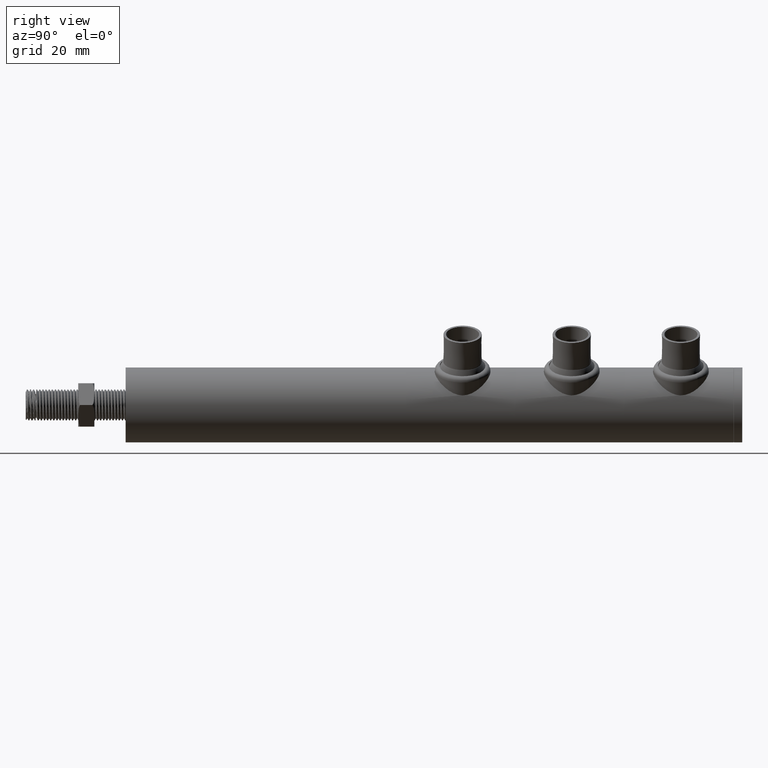
[diagram: clean part render]
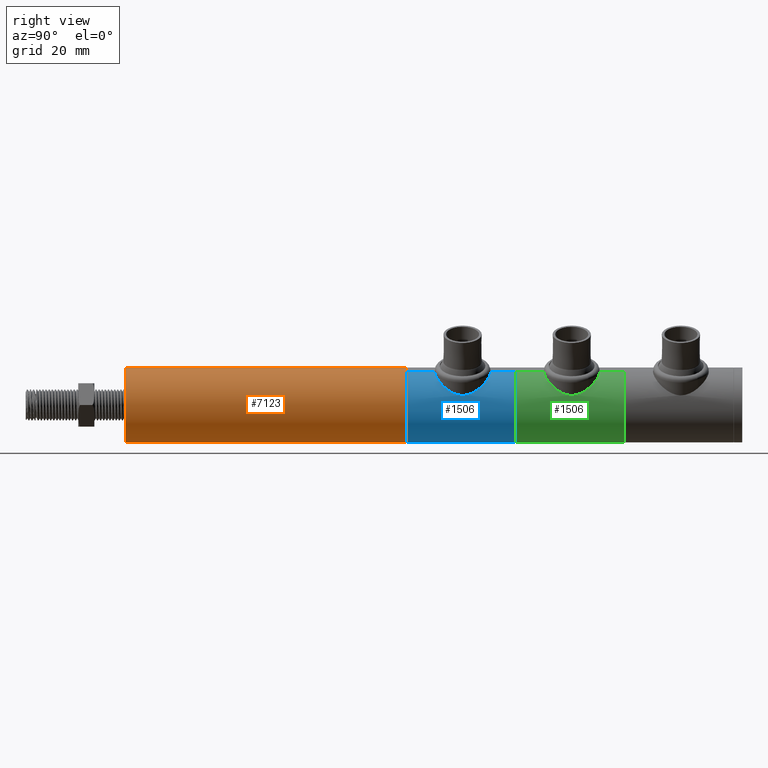
[diagram: same view with three faces highlighted in distinct colors, each labeled with its STEP entity id]
A machine part, right view with three faces highlighted in distinct colors.
Their STEP definitions:

[orange] entity #7123 — the highlighted cylindrical surface (partial cylindrical patch) has radius 12 mm, axis along (-0, -1, -0).
#289 = AXIS2_PLACEMENT_3D ( 'NONE', #17528, #1283, #13801 ) ;
#1283 = DIRECTION ( 'NONE',  ( 0.000000000000000000, 1.000000000000000000, 0.000000000000000000 ) ) ;
#1571 = CIRCLE ( 'NONE', #289, 11.99999999999999822 ) ;
#1632 = CARTESIAN_POINT ( 'NONE',  ( 0.000000000000000000, 90.00000000000000000, -11.99999999999999822 ) ) ;
#1773 = CARTESIAN_POINT ( 'NONE',  ( 1.469576158976823356E-15, 90.00000000000000000, 11.99999999999999822 ) ) ;
#3976 = EDGE_CURVE ( 'NONE', #17228, #20987, #22982, .T. ) ;
#4087 = DIRECTION ( 'NONE',  ( 0.000000000000000000, 1.000000000000000000, 0.000000000000000000 ) ) ;
#4110 = DIRECTION ( 'NONE',  ( 0.000000000000000000, 0.000000000000000000, -1.000000000000000000 ) ) ;
#4862 = CARTESIAN_POINT ( 'NONE',  ( 0.000000000000000000, 0.000000000000000000, -11.99999999999999822 ) ) ;
#6088 = FACE_OUTER_BOUND ( 'NONE', #20743, .T. ) ;
#7123 = ADVANCED_FACE ( 'NONE', ( #6088 ), #21756, .T. ) ;
#7281 = EDGE_CURVE ( 'NONE', #12006, #17228, #1571, .T. ) ;
#7546 = DIRECTION ( 'NONE',  ( -0.000000000000000000, -1.000000000000000000, -0.000000000000000000 ) ) ;
#7661 = CARTESIAN_POINT ( 'NONE',  ( 1.469576158976823356E-15, 0.000000000000000000, 11.99999999999999822 ) ) ;
#8403 = ORIENTED_EDGE ( 'NONE', *, *, #10816, .T. ) ;
#8996 = LINE ( 'NONE', #18421, #13208 ) ;
#9133 = ORIENTED_EDGE ( 'NONE', *, *, #10102, .T. ) ;
#9419 = CARTESIAN_POINT ( 'NONE',  ( 0.000000000000000000, 0.000000000000000000, 0.000000000000000000 ) ) ;
#10102 = EDGE_CURVE ( 'NONE', #22436, #20987, #12395, .T. ) ;
#10816 = EDGE_CURVE ( 'NONE', #12006, #22436, #8996, .T. ) ;
#11113 = VECTOR ( 'NONE', #12406, 1000.000000000000000 ) ;
#12006 = VERTEX_POINT ( 'NONE', #1773 ) ;
#12395 = CIRCLE ( 'NONE', #19093, 11.99999999999999822 ) ;
#12406 = DIRECTION ( 'NONE',  ( -0.000000000000000000, -1.000000000000000000, -0.000000000000000000 ) ) ;
#12539 = AXIS2_PLACEMENT_3D ( 'NONE', #13157, #13009, #4110 ) ;
#13009 = DIRECTION ( 'NONE',  ( -0.000000000000000000, -1.000000000000000000, -0.000000000000000000 ) ) ;
#13056 = DIRECTION ( 'NONE',  ( 0.000000000000000000, 0.000000000000000000, 1.000000000000000000 ) ) ;
#13157 = CARTESIAN_POINT ( 'NONE',  ( 0.000000000000000000, 90.00000000000000000, 0.000000000000000000 ) ) ;
#13208 = VECTOR ( 'NONE', #7546, 1000.000000000000000 ) ;
#13801 = DIRECTION ( 'NONE',  ( 0.000000000000000000, 0.000000000000000000, 1.000000000000000000 ) ) ;
#14290 = ORIENTED_EDGE ( 'NONE', *, *, #3976, .F. ) ;
#16273 = CARTESIAN_POINT ( 'NONE',  ( 0.000000000000000000, 90.00000000000000000, -11.99999999999999822 ) ) ;
#17228 = VERTEX_POINT ( 'NONE', #16273 ) ;
#17528 = CARTESIAN_POINT ( 'NONE',  ( 0.000000000000000000, 90.00000000000000000, 0.000000000000000000 ) ) ;
#17737 = ORIENTED_EDGE ( 'NONE', *, *, #7281, .F. ) ;
#18421 = CARTESIAN_POINT ( 'NONE',  ( 1.469576158976823356E-15, 90.00000000000000000, 11.99999999999999822 ) ) ;
#19093 = AXIS2_PLACEMENT_3D ( 'NONE', #9419, #4087, #13056 ) ;
#20743 = EDGE_LOOP ( 'NONE', ( #17737, #8403, #9133, #14290 ) ) ;
#20987 = VERTEX_POINT ( 'NONE', #4862 ) ;
#21756 = CYLINDRICAL_SURFACE ( 'NONE', #12539, 11.99999999999999822 ) ;
#22436 = VERTEX_POINT ( 'NONE', #7661 ) ;
#22982 = LINE ( 'NONE', #1632, #11113 ) ;

[blue] entity #1506 — the highlighted cylindrical surface (partial cylindrical patch) has radius 12 mm, axis along (0, -1, -0).
#459 = CARTESIAN_POINT ( 'NONE',  ( 0.000000000000000000, 38.00000000000000000, 0.000000000000000000 ) ) ;
#504 = AXIS2_PLACEMENT_3D ( 'NONE', #459, #2195, #3909 ) ;
#625 = CARTESIAN_POINT ( 'NONE',  ( 9.465419477638170153E-15, 30.00000000000010303, 12.00000000000007816 ) ) ;
#630 = CARTESIAN_POINT ( 'NONE',  ( 0.000000000000000000, 38.00000000000000000, -11.99999999999999822 ) ) ;
#702 = CARTESIAN_POINT ( 'NONE',  ( 8.702053357199284633, 23.16356748291623546, 8.263308647178435606 ) ) ;
#1339 = DIRECTION ( 'NONE',  ( 0.000000000000000000, -1.000000000000000000, 0.000000000000000000 ) ) ;
#1506 = ADVANCED_FACE ( 'NONE', ( #22949 ), #18422, .T. ) ;
#1649 = VERTEX_POINT ( 'NONE', #7164 ) ;
#2167 = CARTESIAN_POINT ( 'NONE',  ( 2.991905573811430408, 29.49051375509678863, 11.62479583461445820 ) ) ;
#2195 = DIRECTION ( 'NONE',  ( 0.000000000000000000, 1.000000000000000000, 0.000000000000000000 ) ) ;
#2247 = CARTESIAN_POINT ( 'NONE',  ( 8.824280216056488158, 22.57478811803419205, 8.132655230525349666 ) ) ;
#2490 = CARTESIAN_POINT ( 'NONE',  ( 1.530817031615716584, 29.87331055308622041, 11.90573696014883964 ) ) ;
#2498 = VERTEX_POINT ( 'NONE', #19923 ) ;
#2658 = CARTESIAN_POINT ( 'NONE',  ( 4.825440565169197171, 13.50682977561135978, 10.99012276313096237 ) ) ;
#3256 = CARTESIAN_POINT ( 'NONE',  ( 0.000000000000000000, 3.000000000000002665, -11.99999999999999822 ) ) ;
#3427 = VECTOR ( 'NONE', #14943, 1000.000000000000000 ) ;
#3607 = CARTESIAN_POINT ( 'NONE',  ( 8.950000000000002842, 21.35892279515063308, 7.993591182941491624 ) ) ;
#3909 = DIRECTION ( 'NONE',  ( 0.000000000000000000, 0.000000000000000000, 1.000000000000000000 ) ) ;
#4221 = CARTESIAN_POINT ( 'NONE',  ( 8.000296089732074734, 25.07221582715968822, 8.945802894431153618 ) ) ;
#4279 = ORIENTED_EDGE ( 'NONE', *, *, #22468, .F. ) ;
#4611 = EDGE_LOOP ( 'NONE', ( #10140, #11368, #22422, #4279, #18574, #12614, #20192 ) ) ;
#4641 = CARTESIAN_POINT ( 'NONE',  ( 0.6129941302771416689, 12.09999999999998899, 12.00000000000000533 ) ) ;
#4643 = LINE ( 'NONE', #18724, #22848 ) ;
#5265 = CARTESIAN_POINT ( 'NONE',  ( 0.000000000000000000, 3.000000000000002665, 0.000000000000000000 ) ) ;
#5561 = AXIS2_PLACEMENT_3D ( 'NONE', #8714, #17340, #14367 ) ;
#5803 = CARTESIAN_POINT ( 'NONE',  ( 8.625806627206479504, 23.45511895926637180, 8.343336267953286978 ) ) ;
#5880 = CARTESIAN_POINT ( 'NONE',  ( 5.525215996800509899, 28.11389404186293817, 10.66491027844146089 ) ) ;
#6036 = CARTESIAN_POINT ( 'NONE',  ( 4.585640247881350717, 28.75704316602531918, 11.10136147395972372 ) ) ;
#6280 = CARTESIAN_POINT ( 'NONE',  ( 7.583323917058776509, 16.28826340141842621, 9.302300023862727585 ) ) ;
#6436 = CARTESIAN_POINT ( 'NONE',  ( 2.417304496425874749, 12.41092784537164562, 11.76962403867648277 ) ) ;
#6437 = VECTOR ( 'NONE', #13464, 1000.000000000000000 ) ;
#6568 = EDGE_CURVE ( 'NONE', #9351, #1649, #9497, .T. ) ;
#6628 = AXIS2_PLACEMENT_3D ( 'NONE', #5265, #1339, #8654 ) ;
#7164 = CARTESIAN_POINT ( 'NONE',  ( 9.465419477638170153E-15, 30.00000000000010303, 12.00000000000007816 ) ) ;
#7352 = CARTESIAN_POINT ( 'NONE',  ( 1.469576159252724696E-15, 12.09999999999999609, 11.99999999999999822 ) ) ;
#7726 = CARTESIAN_POINT ( 'NONE',  ( 8.933737592624458657, 21.66953115064654867, 8.011899355041251169 ) ) ;
#7931 = CIRCLE ( 'NONE', #6628, 11.99999999999999822 ) ;
#8133 = LINE ( 'NONE', #630, #3427 ) ;
#8322 = CARTESIAN_POINT ( 'NONE',  ( 6.762041244323622635, 15.15975266511042818, 9.924377068666908386 ) ) ;
#8654 = DIRECTION ( 'NONE',  ( 0.000000000000000000, 0.000000000000000000, -1.000000000000000000 ) ) ;
#8714 = CARTESIAN_POINT ( 'NONE',  ( 0.000000000000000000, 38.00000000000000000, 0.000000000000000000 ) ) ;
#9351 = VERTEX_POINT ( 'NONE', #17841 ) ;
#9395 = CARTESIAN_POINT ( 'NONE',  ( 6.755741499716034326, 26.94728383495924717, 9.928601173671841806 ) ) ;
#9497 = B_SPLINE_CURVE_WITH_KNOTS ( 'NONE', 3,
 ( #10906, #3607, #7726, #13106, #2247, #702, #5803, #22075, #20260, #18275, #4221, #18359, #13182, #12965, #9395, #14935, #5880, #6036, #14852, #11130, #2167, #14692, #16704, #2490, #13037, #11304, #21919, #625 ),
 .UNSPECIFIED., .F., .F.,
 ( 4, 2, 2, 2, 2, 2, 2, 2, 2, 2, 2, 2, 2, 4 ),
 ( 0.02921445509923766698, 0.03012674410115717336, 0.03103903310307667973, 0.03195132210499618958, 0.03286361110691569248, 0.03377590010883520233, 0.03468818911075470524, 0.03651276711459372493, 0.03833734511843273768, 0.04016192312227175043, 0.04107421212419125334, 0.04198650112611076318, 0.04289879012803027303, 0.04381107912994978287 ),
 .UNSPECIFIED. ) ;
#9766 = CARTESIAN_POINT ( 'NONE',  ( 1.469576158976823750E-15, 38.00000000000000000, 11.99999999999999822 ) ) ;
#9967 = CARTESIAN_POINT ( 'NONE',  ( 1.219011267825149680, 12.16231524803950670, 11.95330174341581042 ) ) ;
#10046 = CARTESIAN_POINT ( 'NONE',  ( 8.886837796074201989, 19.82764467562641286, 8.065763519698114337 ) ) ;
#10128 = CARTESIAN_POINT ( 'NONE',  ( 3.802849213112746707, 12.94271697168216662, 11.38503150872022474 ) ) ;
#10140 = ORIENTED_EDGE ( 'NONE', *, *, #10477, .F. ) ;
#10477 = EDGE_CURVE ( 'NONE', #16509, #20665, #15762, .T. ) ;
#10740 = B_SPLINE_CURVE_WITH_KNOTS ( 'NONE', 3,
 ( #13433, #4641, #9967, #6436, #17267, #10128, #17111, #11700, #2658, #11935, #15248, #18940, #16948, #8322, #13601, #6280, #17025, #22478, #18784, #19014, #20580, #10046, #22723, #22641 ),
 .UNSPECIFIED., .F., .F.,
 ( 4, 2, 2, 2, 2, 2, 2, 2, 2, 2, 2, 4 ),
 ( 0.01462500468237804344, 0.01644868598448549768, 0.01827236728659294845, 0.01918420793764667384, 0.02009604858870039923, 0.02100788923975412462, 0.02191972989080785000, 0.02374341119291530078, 0.02465525184396903310, 0.02556709249502276543, 0.02739077379713021620, 0.02921445509923766698 ),
 .UNSPECIFIED. ) ;
#10884 = CARTESIAN_POINT ( 'NONE',  ( 0.000000000000000000, 38.00000000000000000, -11.99999999999999822 ) ) ;
#10906 = CARTESIAN_POINT ( 'NONE',  ( 8.950000000000001066, 21.04999999999993676, 7.993591182941553797 ) ) ;
#11130 = CARTESIAN_POINT ( 'NONE',  ( 3.273133757833466717, 29.38520092689991969, 11.54844084539750249 ) ) ;
#11304 = CARTESIAN_POINT ( 'NONE',  ( 0.6196706977338223288, 29.98379346922288846, 11.98789876979424385 ) ) ;
#11368 = ORIENTED_EDGE ( 'NONE', *, *, #16002, .T. ) ;
#11700 = CARTESIAN_POINT ( 'NONE',  ( 4.580081938064414437, 13.35515308009158986, 11.09495434272713865 ) ) ;
#11829 = VERTEX_POINT ( 'NONE', #7352 ) ;
#11935 = CARTESIAN_POINT ( 'NONE',  ( 5.297186036133789244, 13.83029683569518831, 10.77067755971086171 ) ) ;
#12614 = ORIENTED_EDGE ( 'NONE', *, *, #18990, .F. ) ;
#12707 = EDGE_CURVE ( 'NONE', #20665, #22010, #8133, .T. ) ;
#12965 = CARTESIAN_POINT ( 'NONE',  ( 7.109484133287997665, 26.51587659562816768, 9.675533393184844400 ) ) ;
#13037 = CARTESIAN_POINT ( 'NONE',  ( 1.230087054708958183, 29.92037447699909336, 11.94071164237298355 ) ) ;
#13106 = CARTESIAN_POINT ( 'NONE',  ( 8.870853077932201458, 22.27615328985966059, 8.081470430492377233 ) ) ;
#13182 = CARTESIAN_POINT ( 'NONE',  ( 7.581905582971725899, 25.81410806247399492, 9.303487813821732288 ) ) ;
#13433 = CARTESIAN_POINT ( 'NONE',  ( 1.469576159252724696E-15, 12.09999999999999609, 11.99999999999999822 ) ) ;
#13464 = DIRECTION ( 'NONE',  ( -0.000000000000000000, -1.000000000000000000, -0.000000000000000000 ) ) ;
#13601 = CARTESIAN_POINT ( 'NONE',  ( 7.114488811609906094, 15.59103515209112700, 9.671731923985808166 ) ) ;
#13990 = LINE ( 'NONE', #9766, #6437 ) ;
#14367 = DIRECTION ( 'NONE',  ( 0.000000000000000000, 0.000000000000000000, -1.000000000000000000 ) ) ;
#14692 = CARTESIAN_POINT ( 'NONE',  ( 2.415916455464611978, 29.67305740980526352, 11.75800683956634174 ) ) ;
#14852 = CARTESIAN_POINT ( 'NONE',  ( 4.083275855009308231, 29.03594231420107263, 11.29807153974322631 ) ) ;
#14935 = CARTESIAN_POINT ( 'NONE',  ( 5.965420476952481899, 27.74565219931659854, 10.42261593890801308 ) ) ;
#14943 = DIRECTION ( 'NONE',  ( -0.000000000000000000, -1.000000000000000000, -0.000000000000000000 ) ) ;
#15248 = CARTESIAN_POINT ( 'NONE',  ( 5.523566913422492952, 14.00208989382839420, 10.65605543376737785 ) ) ;
#15762 = CIRCLE ( 'NONE', #504, 11.99999999999999822 ) ;
#16002 = EDGE_CURVE ( 'NONE', #16509, #1649, #13990, .T. ) ;
#16509 = VERTEX_POINT ( 'NONE', #18545 ) ;
#16704 = CARTESIAN_POINT ( 'NONE',  ( 2.123732315780361368, 29.74965349605360743, 11.81438675511552461 ) ) ;
#16948 = CARTESIAN_POINT ( 'NONE',  ( 6.167724160995380345, 14.55838174736832080, 10.29630002338838324 ) ) ;
#17025 = CARTESIAN_POINT ( 'NONE',  ( 7.729531960531671686, 16.52915071542384950, 9.180782253141765992 ) ) ;
#17111 = CARTESIAN_POINT ( 'NONE',  ( 4.068606523712079870, 13.07289146147456904, 11.29254636394250966 ) ) ;
#17267 = CARTESIAN_POINT ( 'NONE',  ( 2.988839286254290073, 12.59316012468999801, 11.63568898217210013 ) ) ;
#17340 = DIRECTION ( 'NONE',  ( -0.000000000000000000, -1.000000000000000000, -0.000000000000000000 ) ) ;
#17841 = CARTESIAN_POINT ( 'NONE',  ( 8.950000000000001066, 21.04999999999993676, 7.993591182941553797 ) ) ;
#18275 = CARTESIAN_POINT ( 'NONE',  ( 8.124120032986773765, 24.81608577854212427, 8.833033403944789086 ) ) ;
#18359 = CARTESIAN_POINT ( 'NONE',  ( 7.729545867486545596, 25.57073869694521662, 9.180754197331326694 ) ) ;
#18422 = CYLINDRICAL_SURFACE ( 'NONE', #5561, 11.99999999999999822 ) ;
#18545 = CARTESIAN_POINT ( 'NONE',  ( 1.469576158976823750E-15, 38.00000000000000000, 11.99999999999999822 ) ) ;
#18574 = ORIENTED_EDGE ( 'NONE', *, *, #18762, .T. ) ;
#18724 = CARTESIAN_POINT ( 'NONE',  ( 1.469576158976823750E-15, 38.00000000000000000, 11.99999999999999822 ) ) ;
#18762 = EDGE_CURVE ( 'NONE', #11829, #2498, #4643, .T. ) ;
#18784 = CARTESIAN_POINT ( 'NONE',  ( 8.126543526952460184, 17.28907484921700899, 8.830808669466090777 ) ) ;
#18799 = DIRECTION ( 'NONE',  ( -0.000000000000000000, -1.000000000000000000, -0.000000000000000000 ) ) ;
#18940 = CARTESIAN_POINT ( 'NONE',  ( 5.958429371337575553, 14.36569392243942289, 10.41913759777461301 ) ) ;
#18990 = EDGE_CURVE ( 'NONE', #22010, #2498, #7931, .T. ) ;
#19014 = CARTESIAN_POINT ( 'NONE',  ( 8.463684130385422222, 18.08358437132590879, 8.512438942497238870 ) ) ;
#19923 = CARTESIAN_POINT ( 'NONE',  ( 1.469576158976823750E-15, 3.000000000000002665, 11.99999999999999822 ) ) ;
#20192 = ORIENTED_EDGE ( 'NONE', *, *, #12707, .F. ) ;
#20260 = CARTESIAN_POINT ( 'NONE',  ( 8.348538404421574910, 24.28830741462454412, 8.621236102524948208 ) ) ;
#20580 = CARTESIAN_POINT ( 'NONE',  ( 8.640816427779906661, 18.64036724495902675, 8.328788545210812799 ) ) ;
#20665 = VERTEX_POINT ( 'NONE', #10884 ) ;
#21919 = CARTESIAN_POINT ( 'NONE',  ( 0.3079849373104711074, 30.00000000000001066, 12.00000000000000888 ) ) ;
#22010 = VERTEX_POINT ( 'NONE', #3256 ) ;
#22075 = CARTESIAN_POINT ( 'NONE',  ( 8.449142658263127714, 24.01666909487730095, 8.522193871910111795 ) ) ;
#22422 = ORIENTED_EDGE ( 'NONE', *, *, #6568, .F. ) ;
#22468 = EDGE_CURVE ( 'NONE', #11829, #9351, #10740, .T. ) ;
#22478 = CARTESIAN_POINT ( 'NONE',  ( 8.001528174952154515, 17.03013813070895210, 8.944717657585975701 ) ) ;
#22641 = CARTESIAN_POINT ( 'NONE',  ( 8.950000000000001066, 21.04999999999993676, 7.993591182941553797 ) ) ;
#22723 = CARTESIAN_POINT ( 'NONE',  ( 8.949999999999999289, 20.43245805427252648, 7.993591182941503170 ) ) ;
#22848 = VECTOR ( 'NONE', #18799, 1000.000000000000000 ) ;
#22949 = FACE_OUTER_BOUND ( 'NONE', #4611, .T. ) ;

[green] entity #1506 — the highlighted cylindrical surface (partial cylindrical patch) has radius 12 mm, axis along (0, -1, -0).
#459 = CARTESIAN_POINT ( 'NONE',  ( 0.000000000000000000, 38.00000000000000000, 0.000000000000000000 ) ) ;
#504 = AXIS2_PLACEMENT_3D ( 'NONE', #459, #2195, #3909 ) ;
#625 = CARTESIAN_POINT ( 'NONE',  ( 9.465419477638170153E-15, 30.00000000000010303, 12.00000000000007816 ) ) ;
#630 = CARTESIAN_POINT ( 'NONE',  ( 0.000000000000000000, 38.00000000000000000, -11.99999999999999822 ) ) ;
#702 = CARTESIAN_POINT ( 'NONE',  ( 8.702053357199284633, 23.16356748291623546, 8.263308647178435606 ) ) ;
#1339 = DIRECTION ( 'NONE',  ( 0.000000000000000000, -1.000000000000000000, 0.000000000000000000 ) ) ;
#1506 = ADVANCED_FACE ( 'NONE', ( #22949 ), #18422, .T. ) ;
#1649 = VERTEX_POINT ( 'NONE', #7164 ) ;
#2167 = CARTESIAN_POINT ( 'NONE',  ( 2.991905573811430408, 29.49051375509678863, 11.62479583461445820 ) ) ;
#2195 = DIRECTION ( 'NONE',  ( 0.000000000000000000, 1.000000000000000000, 0.000000000000000000 ) ) ;
#2247 = CARTESIAN_POINT ( 'NONE',  ( 8.824280216056488158, 22.57478811803419205, 8.132655230525349666 ) ) ;
#2490 = CARTESIAN_POINT ( 'NONE',  ( 1.530817031615716584, 29.87331055308622041, 11.90573696014883964 ) ) ;
#2498 = VERTEX_POINT ( 'NONE', #19923 ) ;
#2658 = CARTESIAN_POINT ( 'NONE',  ( 4.825440565169197171, 13.50682977561135978, 10.99012276313096237 ) ) ;
#3256 = CARTESIAN_POINT ( 'NONE',  ( 0.000000000000000000, 3.000000000000002665, -11.99999999999999822 ) ) ;
#3427 = VECTOR ( 'NONE', #14943, 1000.000000000000000 ) ;
#3607 = CARTESIAN_POINT ( 'NONE',  ( 8.950000000000002842, 21.35892279515063308, 7.993591182941491624 ) ) ;
#3909 = DIRECTION ( 'NONE',  ( 0.000000000000000000, 0.000000000000000000, 1.000000000000000000 ) ) ;
#4221 = CARTESIAN_POINT ( 'NONE',  ( 8.000296089732074734, 25.07221582715968822, 8.945802894431153618 ) ) ;
#4279 = ORIENTED_EDGE ( 'NONE', *, *, #22468, .F. ) ;
#4611 = EDGE_LOOP ( 'NONE', ( #10140, #11368, #22422, #4279, #18574, #12614, #20192 ) ) ;
#4641 = CARTESIAN_POINT ( 'NONE',  ( 0.6129941302771416689, 12.09999999999998899, 12.00000000000000533 ) ) ;
#4643 = LINE ( 'NONE', #18724, #22848 ) ;
#5265 = CARTESIAN_POINT ( 'NONE',  ( 0.000000000000000000, 3.000000000000002665, 0.000000000000000000 ) ) ;
#5561 = AXIS2_PLACEMENT_3D ( 'NONE', #8714, #17340, #14367 ) ;
#5803 = CARTESIAN_POINT ( 'NONE',  ( 8.625806627206479504, 23.45511895926637180, 8.343336267953286978 ) ) ;
#5880 = CARTESIAN_POINT ( 'NONE',  ( 5.525215996800509899, 28.11389404186293817, 10.66491027844146089 ) ) ;
#6036 = CARTESIAN_POINT ( 'NONE',  ( 4.585640247881350717, 28.75704316602531918, 11.10136147395972372 ) ) ;
#6280 = CARTESIAN_POINT ( 'NONE',  ( 7.583323917058776509, 16.28826340141842621, 9.302300023862727585 ) ) ;
#6436 = CARTESIAN_POINT ( 'NONE',  ( 2.417304496425874749, 12.41092784537164562, 11.76962403867648277 ) ) ;
#6437 = VECTOR ( 'NONE', #13464, 1000.000000000000000 ) ;
#6568 = EDGE_CURVE ( 'NONE', #9351, #1649, #9497, .T. ) ;
#6628 = AXIS2_PLACEMENT_3D ( 'NONE', #5265, #1339, #8654 ) ;
#7164 = CARTESIAN_POINT ( 'NONE',  ( 9.465419477638170153E-15, 30.00000000000010303, 12.00000000000007816 ) ) ;
#7352 = CARTESIAN_POINT ( 'NONE',  ( 1.469576159252724696E-15, 12.09999999999999609, 11.99999999999999822 ) ) ;
#7726 = CARTESIAN_POINT ( 'NONE',  ( 8.933737592624458657, 21.66953115064654867, 8.011899355041251169 ) ) ;
#7931 = CIRCLE ( 'NONE', #6628, 11.99999999999999822 ) ;
#8133 = LINE ( 'NONE', #630, #3427 ) ;
#8322 = CARTESIAN_POINT ( 'NONE',  ( 6.762041244323622635, 15.15975266511042818, 9.924377068666908386 ) ) ;
#8654 = DIRECTION ( 'NONE',  ( 0.000000000000000000, 0.000000000000000000, -1.000000000000000000 ) ) ;
#8714 = CARTESIAN_POINT ( 'NONE',  ( 0.000000000000000000, 38.00000000000000000, 0.000000000000000000 ) ) ;
#9351 = VERTEX_POINT ( 'NONE', #17841 ) ;
#9395 = CARTESIAN_POINT ( 'NONE',  ( 6.755741499716034326, 26.94728383495924717, 9.928601173671841806 ) ) ;
#9497 = B_SPLINE_CURVE_WITH_KNOTS ( 'NONE', 3,
 ( #10906, #3607, #7726, #13106, #2247, #702, #5803, #22075, #20260, #18275, #4221, #18359, #13182, #12965, #9395, #14935, #5880, #6036, #14852, #11130, #2167, #14692, #16704, #2490, #13037, #11304, #21919, #625 ),
 .UNSPECIFIED., .F., .F.,
 ( 4, 2, 2, 2, 2, 2, 2, 2, 2, 2, 2, 2, 2, 4 ),
 ( 0.02921445509923766698, 0.03012674410115717336, 0.03103903310307667973, 0.03195132210499618958, 0.03286361110691569248, 0.03377590010883520233, 0.03468818911075470524, 0.03651276711459372493, 0.03833734511843273768, 0.04016192312227175043, 0.04107421212419125334, 0.04198650112611076318, 0.04289879012803027303, 0.04381107912994978287 ),
 .UNSPECIFIED. ) ;
#9766 = CARTESIAN_POINT ( 'NONE',  ( 1.469576158976823750E-15, 38.00000000000000000, 11.99999999999999822 ) ) ;
#9967 = CARTESIAN_POINT ( 'NONE',  ( 1.219011267825149680, 12.16231524803950670, 11.95330174341581042 ) ) ;
#10046 = CARTESIAN_POINT ( 'NONE',  ( 8.886837796074201989, 19.82764467562641286, 8.065763519698114337 ) ) ;
#10128 = CARTESIAN_POINT ( 'NONE',  ( 3.802849213112746707, 12.94271697168216662, 11.38503150872022474 ) ) ;
#10140 = ORIENTED_EDGE ( 'NONE', *, *, #10477, .F. ) ;
#10477 = EDGE_CURVE ( 'NONE', #16509, #20665, #15762, .T. ) ;
#10740 = B_SPLINE_CURVE_WITH_KNOTS ( 'NONE', 3,
 ( #13433, #4641, #9967, #6436, #17267, #10128, #17111, #11700, #2658, #11935, #15248, #18940, #16948, #8322, #13601, #6280, #17025, #22478, #18784, #19014, #20580, #10046, #22723, #22641 ),
 .UNSPECIFIED., .F., .F.,
 ( 4, 2, 2, 2, 2, 2, 2, 2, 2, 2, 2, 4 ),
 ( 0.01462500468237804344, 0.01644868598448549768, 0.01827236728659294845, 0.01918420793764667384, 0.02009604858870039923, 0.02100788923975412462, 0.02191972989080785000, 0.02374341119291530078, 0.02465525184396903310, 0.02556709249502276543, 0.02739077379713021620, 0.02921445509923766698 ),
 .UNSPECIFIED. ) ;
#10884 = CARTESIAN_POINT ( 'NONE',  ( 0.000000000000000000, 38.00000000000000000, -11.99999999999999822 ) ) ;
#10906 = CARTESIAN_POINT ( 'NONE',  ( 8.950000000000001066, 21.04999999999993676, 7.993591182941553797 ) ) ;
#11130 = CARTESIAN_POINT ( 'NONE',  ( 3.273133757833466717, 29.38520092689991969, 11.54844084539750249 ) ) ;
#11304 = CARTESIAN_POINT ( 'NONE',  ( 0.6196706977338223288, 29.98379346922288846, 11.98789876979424385 ) ) ;
#11368 = ORIENTED_EDGE ( 'NONE', *, *, #16002, .T. ) ;
#11700 = CARTESIAN_POINT ( 'NONE',  ( 4.580081938064414437, 13.35515308009158986, 11.09495434272713865 ) ) ;
#11829 = VERTEX_POINT ( 'NONE', #7352 ) ;
#11935 = CARTESIAN_POINT ( 'NONE',  ( 5.297186036133789244, 13.83029683569518831, 10.77067755971086171 ) ) ;
#12614 = ORIENTED_EDGE ( 'NONE', *, *, #18990, .F. ) ;
#12707 = EDGE_CURVE ( 'NONE', #20665, #22010, #8133, .T. ) ;
#12965 = CARTESIAN_POINT ( 'NONE',  ( 7.109484133287997665, 26.51587659562816768, 9.675533393184844400 ) ) ;
#13037 = CARTESIAN_POINT ( 'NONE',  ( 1.230087054708958183, 29.92037447699909336, 11.94071164237298355 ) ) ;
#13106 = CARTESIAN_POINT ( 'NONE',  ( 8.870853077932201458, 22.27615328985966059, 8.081470430492377233 ) ) ;
#13182 = CARTESIAN_POINT ( 'NONE',  ( 7.581905582971725899, 25.81410806247399492, 9.303487813821732288 ) ) ;
#13433 = CARTESIAN_POINT ( 'NONE',  ( 1.469576159252724696E-15, 12.09999999999999609, 11.99999999999999822 ) ) ;
#13464 = DIRECTION ( 'NONE',  ( -0.000000000000000000, -1.000000000000000000, -0.000000000000000000 ) ) ;
#13601 = CARTESIAN_POINT ( 'NONE',  ( 7.114488811609906094, 15.59103515209112700, 9.671731923985808166 ) ) ;
#13990 = LINE ( 'NONE', #9766, #6437 ) ;
#14367 = DIRECTION ( 'NONE',  ( 0.000000000000000000, 0.000000000000000000, -1.000000000000000000 ) ) ;
#14692 = CARTESIAN_POINT ( 'NONE',  ( 2.415916455464611978, 29.67305740980526352, 11.75800683956634174 ) ) ;
#14852 = CARTESIAN_POINT ( 'NONE',  ( 4.083275855009308231, 29.03594231420107263, 11.29807153974322631 ) ) ;
#14935 = CARTESIAN_POINT ( 'NONE',  ( 5.965420476952481899, 27.74565219931659854, 10.42261593890801308 ) ) ;
#14943 = DIRECTION ( 'NONE',  ( -0.000000000000000000, -1.000000000000000000, -0.000000000000000000 ) ) ;
#15248 = CARTESIAN_POINT ( 'NONE',  ( 5.523566913422492952, 14.00208989382839420, 10.65605543376737785 ) ) ;
#15762 = CIRCLE ( 'NONE', #504, 11.99999999999999822 ) ;
#16002 = EDGE_CURVE ( 'NONE', #16509, #1649, #13990, .T. ) ;
#16509 = VERTEX_POINT ( 'NONE', #18545 ) ;
#16704 = CARTESIAN_POINT ( 'NONE',  ( 2.123732315780361368, 29.74965349605360743, 11.81438675511552461 ) ) ;
#16948 = CARTESIAN_POINT ( 'NONE',  ( 6.167724160995380345, 14.55838174736832080, 10.29630002338838324 ) ) ;
#17025 = CARTESIAN_POINT ( 'NONE',  ( 7.729531960531671686, 16.52915071542384950, 9.180782253141765992 ) ) ;
#17111 = CARTESIAN_POINT ( 'NONE',  ( 4.068606523712079870, 13.07289146147456904, 11.29254636394250966 ) ) ;
#17267 = CARTESIAN_POINT ( 'NONE',  ( 2.988839286254290073, 12.59316012468999801, 11.63568898217210013 ) ) ;
#17340 = DIRECTION ( 'NONE',  ( -0.000000000000000000, -1.000000000000000000, -0.000000000000000000 ) ) ;
#17841 = CARTESIAN_POINT ( 'NONE',  ( 8.950000000000001066, 21.04999999999993676, 7.993591182941553797 ) ) ;
#18275 = CARTESIAN_POINT ( 'NONE',  ( 8.124120032986773765, 24.81608577854212427, 8.833033403944789086 ) ) ;
#18359 = CARTESIAN_POINT ( 'NONE',  ( 7.729545867486545596, 25.57073869694521662, 9.180754197331326694 ) ) ;
#18422 = CYLINDRICAL_SURFACE ( 'NONE', #5561, 11.99999999999999822 ) ;
#18545 = CARTESIAN_POINT ( 'NONE',  ( 1.469576158976823750E-15, 38.00000000000000000, 11.99999999999999822 ) ) ;
#18574 = ORIENTED_EDGE ( 'NONE', *, *, #18762, .T. ) ;
#18724 = CARTESIAN_POINT ( 'NONE',  ( 1.469576158976823750E-15, 38.00000000000000000, 11.99999999999999822 ) ) ;
#18762 = EDGE_CURVE ( 'NONE', #11829, #2498, #4643, .T. ) ;
#18784 = CARTESIAN_POINT ( 'NONE',  ( 8.126543526952460184, 17.28907484921700899, 8.830808669466090777 ) ) ;
#18799 = DIRECTION ( 'NONE',  ( -0.000000000000000000, -1.000000000000000000, -0.000000000000000000 ) ) ;
#18940 = CARTESIAN_POINT ( 'NONE',  ( 5.958429371337575553, 14.36569392243942289, 10.41913759777461301 ) ) ;
#18990 = EDGE_CURVE ( 'NONE', #22010, #2498, #7931, .T. ) ;
#19014 = CARTESIAN_POINT ( 'NONE',  ( 8.463684130385422222, 18.08358437132590879, 8.512438942497238870 ) ) ;
#19923 = CARTESIAN_POINT ( 'NONE',  ( 1.469576158976823750E-15, 3.000000000000002665, 11.99999999999999822 ) ) ;
#20192 = ORIENTED_EDGE ( 'NONE', *, *, #12707, .F. ) ;
#20260 = CARTESIAN_POINT ( 'NONE',  ( 8.348538404421574910, 24.28830741462454412, 8.621236102524948208 ) ) ;
#20580 = CARTESIAN_POINT ( 'NONE',  ( 8.640816427779906661, 18.64036724495902675, 8.328788545210812799 ) ) ;
#20665 = VERTEX_POINT ( 'NONE', #10884 ) ;
#21919 = CARTESIAN_POINT ( 'NONE',  ( 0.3079849373104711074, 30.00000000000001066, 12.00000000000000888 ) ) ;
#22010 = VERTEX_POINT ( 'NONE', #3256 ) ;
#22075 = CARTESIAN_POINT ( 'NONE',  ( 8.449142658263127714, 24.01666909487730095, 8.522193871910111795 ) ) ;
#22422 = ORIENTED_EDGE ( 'NONE', *, *, #6568, .F. ) ;
#22468 = EDGE_CURVE ( 'NONE', #11829, #9351, #10740, .T. ) ;
#22478 = CARTESIAN_POINT ( 'NONE',  ( 8.001528174952154515, 17.03013813070895210, 8.944717657585975701 ) ) ;
#22641 = CARTESIAN_POINT ( 'NONE',  ( 8.950000000000001066, 21.04999999999993676, 7.993591182941553797 ) ) ;
#22723 = CARTESIAN_POINT ( 'NONE',  ( 8.949999999999999289, 20.43245805427252648, 7.993591182941503170 ) ) ;
#22848 = VECTOR ( 'NONE', #18799, 1000.000000000000000 ) ;
#22949 = FACE_OUTER_BOUND ( 'NONE', #4611, .T. ) ;